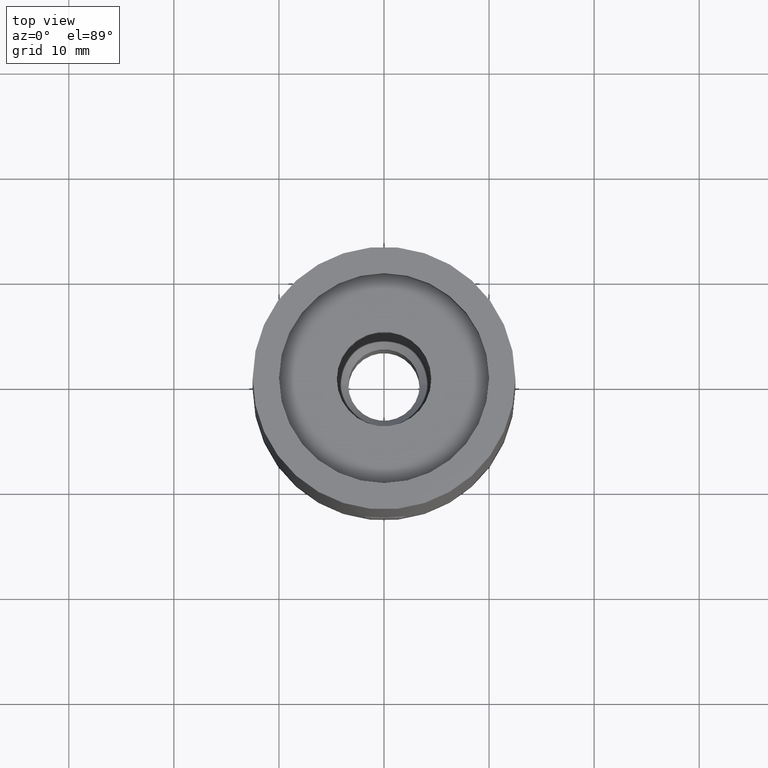
[diagram: clean part render]
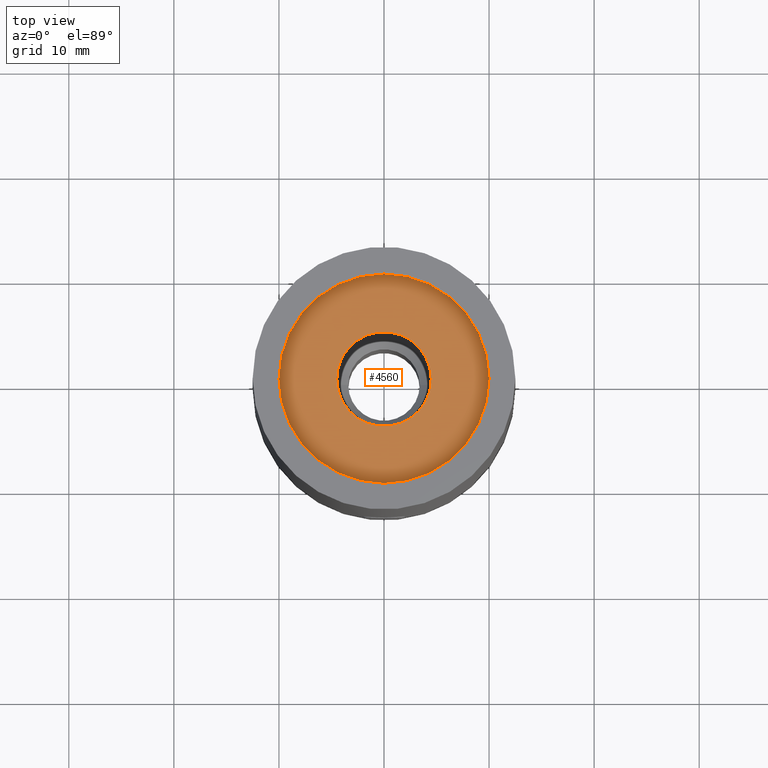
[diagram: same view with one face highlighted and labeled with its STEP entity id]
A machine part, top view. The second image highlights one B-rep face of the part: STEP entity #4560.
In plain terms, the highlighted planar face has unit normal (0, 0, -1).
Its self-contained STEP definition (entity closure, byte-faithful):
#261 = CARTESIAN_POINT ( 'NONE',  ( 0.0000000000000000000, 10.00000000000000000, 0.0000000000000000000 ) ) ;
#427 = DIRECTION ( 'NONE',  ( 1.000000000000000000, 0.0000000000000000000, 0.0000000000000000000 ) ) ;
#441 = DIRECTION ( 'NONE',  ( 1.000000000000000000, 0.0000000000000000000, 0.0000000000000000000 ) ) ;
#1236 = CARTESIAN_POINT ( 'NONE',  ( -4.500000000000000000, 5.510910596163088600E-016, 0.0000000000000000000 ) ) ;
#1315 = DIRECTION ( 'NONE',  ( -1.000000000000000000, 0.0000000000000000000, -0.0000000000000000000 ) ) ;
#1444 = AXIS2_PLACEMENT_3D ( 'NONE', #3673, #11093, #1590 ) ;
#1590 = DIRECTION ( 'NONE',  ( 1.000000000000000000, 0.0000000000000000000, 0.0000000000000000000 ) ) ;
#2143 = ORIENTED_EDGE ( 'NONE', *, *, #12628, .F. ) ;
#2549 = EDGE_CURVE ( 'NONE', #6414, #11219, #6503, .T. ) ;
#3138 = EDGE_CURVE ( 'NONE', #6108, #9731, #4112, .T. ) ;
#3673 = CARTESIAN_POINT ( 'NONE',  ( 0.0000000000000000000, 0.0000000000000000000, 0.0000000000000000000 ) ) ;
#4112 = CIRCLE ( 'NONE', #4158, 4.500000000000000000 ) ;
#4158 = AXIS2_PLACEMENT_3D ( 'NONE', #7699, #11833, #441 ) ;
#4240 = FACE_OUTER_BOUND ( 'NONE', #11472, .T. ) ;
#4560 = ADVANCED_FACE ( 'NONE', ( #9645, #4240 ), #12794, .F. ) ;
#4903 = AXIS2_PLACEMENT_3D ( 'NONE', #12537, #10615, #7375 ) ;
#5327 = EDGE_CURVE ( 'NONE', #11219, #6414, #11538, .T. ) ;
#5604 = DIRECTION ( 'NONE',  ( -0.0000000000000000000, -0.0000000000000000000, 1.000000000000000000 ) ) ;
#5918 = CARTESIAN_POINT ( 'NONE',  ( 4.500000000000000000, 0.0000000000000000000, 0.0000000000000000000 ) ) ;
#6108 = VERTEX_POINT ( 'NONE', #5918 ) ;
#6324 = CIRCLE ( 'NONE', #1444, 4.500000000000000000 ) ;
#6401 = ORIENTED_EDGE ( 'NONE', *, *, #5327, .T. ) ;
#6414 = VERTEX_POINT ( 'NONE', #10028 ) ;
#6503 = CIRCLE ( 'NONE', #4903, 10.00000000000000000 ) ;
#6647 = AXIS2_PLACEMENT_3D ( 'NONE', #261, #10739, #1315 ) ;
#7375 = DIRECTION ( 'NONE',  ( 1.000000000000000000, 0.0000000000000000000, 0.0000000000000000000 ) ) ;
#7699 = CARTESIAN_POINT ( 'NONE',  ( 0.0000000000000000000, 0.0000000000000000000, 0.0000000000000000000 ) ) ;
#7808 = CARTESIAN_POINT ( 'NONE',  ( 10.00000000000000000, 0.0000000000000000000, 0.0000000000000000000 ) ) ;
#8713 = ORIENTED_EDGE ( 'NONE', *, *, #3138, .F. ) ;
#9410 = AXIS2_PLACEMENT_3D ( 'NONE', #11025, #5604, #427 ) ;
#9645 = FACE_BOUND ( 'NONE', #10391, .T. ) ;
#9731 = VERTEX_POINT ( 'NONE', #1236 ) ;
#10028 = CARTESIAN_POINT ( 'NONE',  ( -10.00000000000000000, 1.224646799147353300E-015, 0.0000000000000000000 ) ) ;
#10391 = EDGE_LOOP ( 'NONE', ( #8713, #2143 ) ) ;
#10498 = ORIENTED_EDGE ( 'NONE', *, *, #2549, .T. ) ;
#10615 = DIRECTION ( 'NONE',  ( -0.0000000000000000000, -0.0000000000000000000, 1.000000000000000000 ) ) ;
#10739 = DIRECTION ( 'NONE',  ( 0.0000000000000000000, 0.0000000000000000000, -1.000000000000000000 ) ) ;
#11025 = CARTESIAN_POINT ( 'NONE',  ( 0.0000000000000000000, 0.0000000000000000000, 0.0000000000000000000 ) ) ;
#11093 = DIRECTION ( 'NONE',  ( -0.0000000000000000000, -0.0000000000000000000, 1.000000000000000000 ) ) ;
#11219 = VERTEX_POINT ( 'NONE', #7808 ) ;
#11472 = EDGE_LOOP ( 'NONE', ( #6401, #10498 ) ) ;
#11538 = CIRCLE ( 'NONE', #9410, 10.00000000000000000 ) ;
#11833 = DIRECTION ( 'NONE',  ( -0.0000000000000000000, -0.0000000000000000000, 1.000000000000000000 ) ) ;
#12537 = CARTESIAN_POINT ( 'NONE',  ( 0.0000000000000000000, 0.0000000000000000000, 0.0000000000000000000 ) ) ;
#12628 = EDGE_CURVE ( 'NONE', #9731, #6108, #6324, .T. ) ;
#12794 = PLANE ( 'NONE',  #6647 ) ;